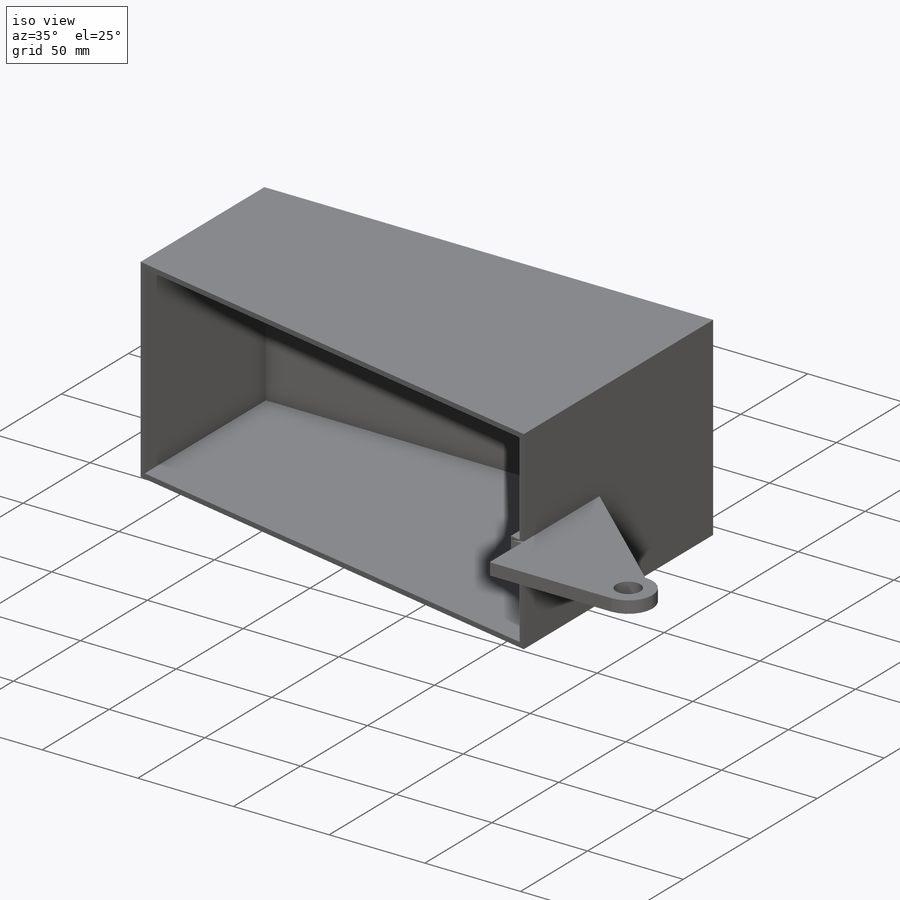
[diagram: iso view]
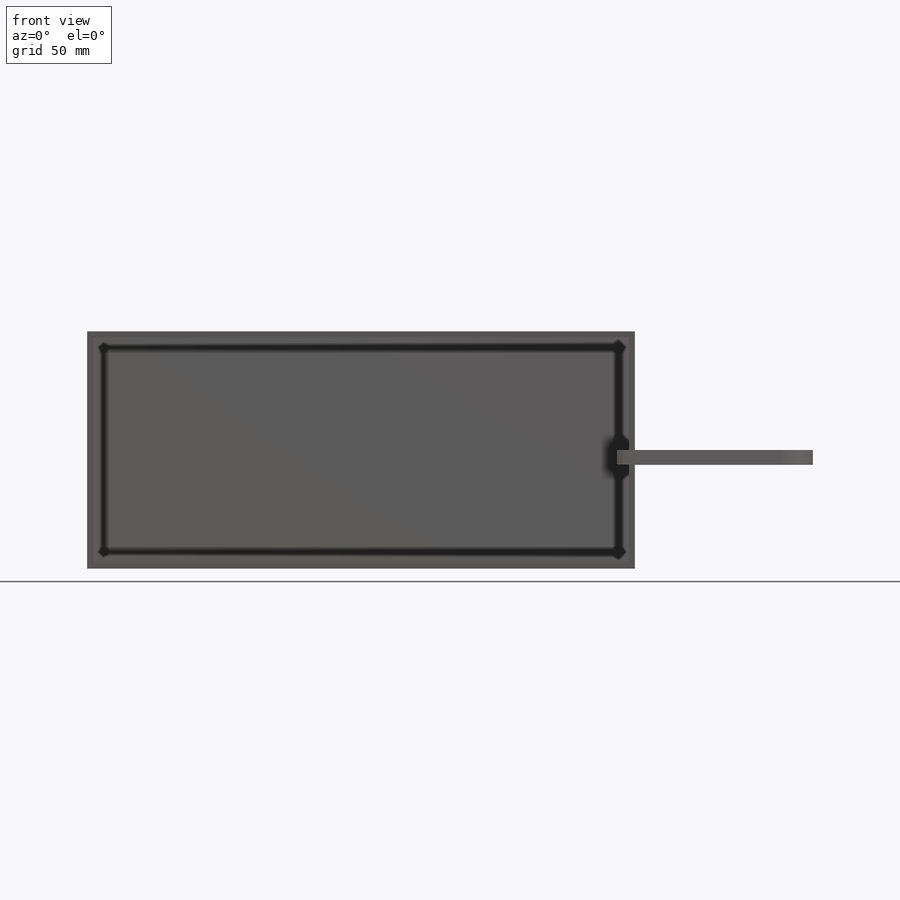
[diagram: front view]
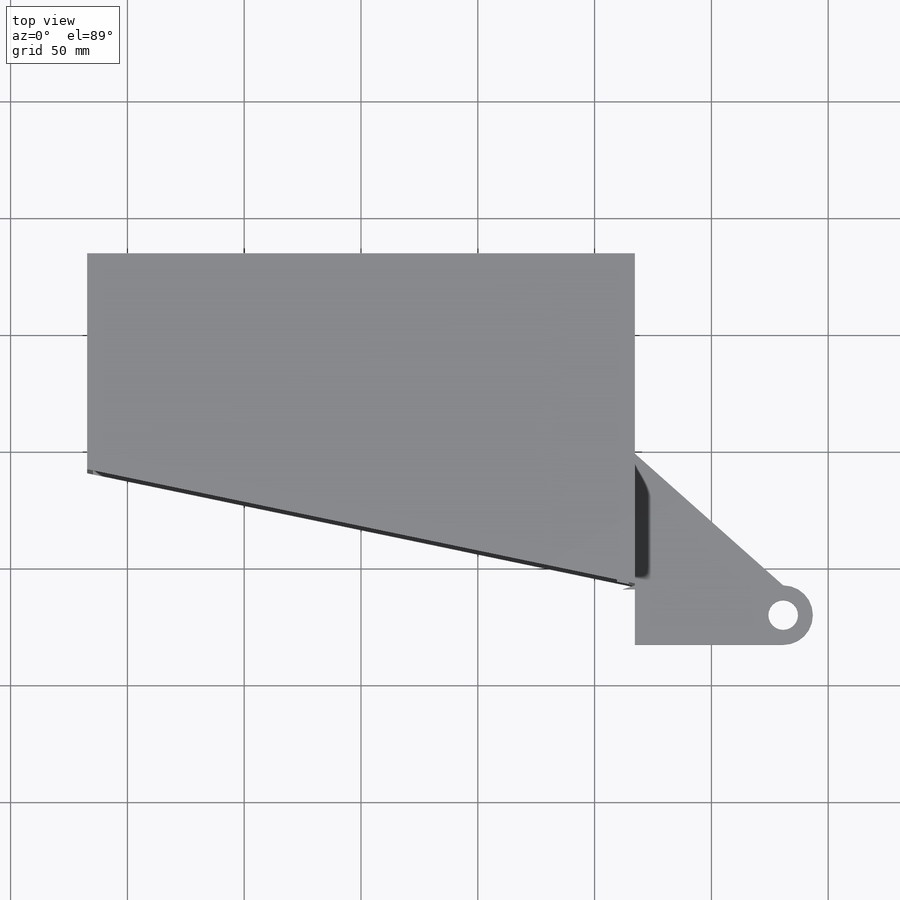
[diagram: top view]
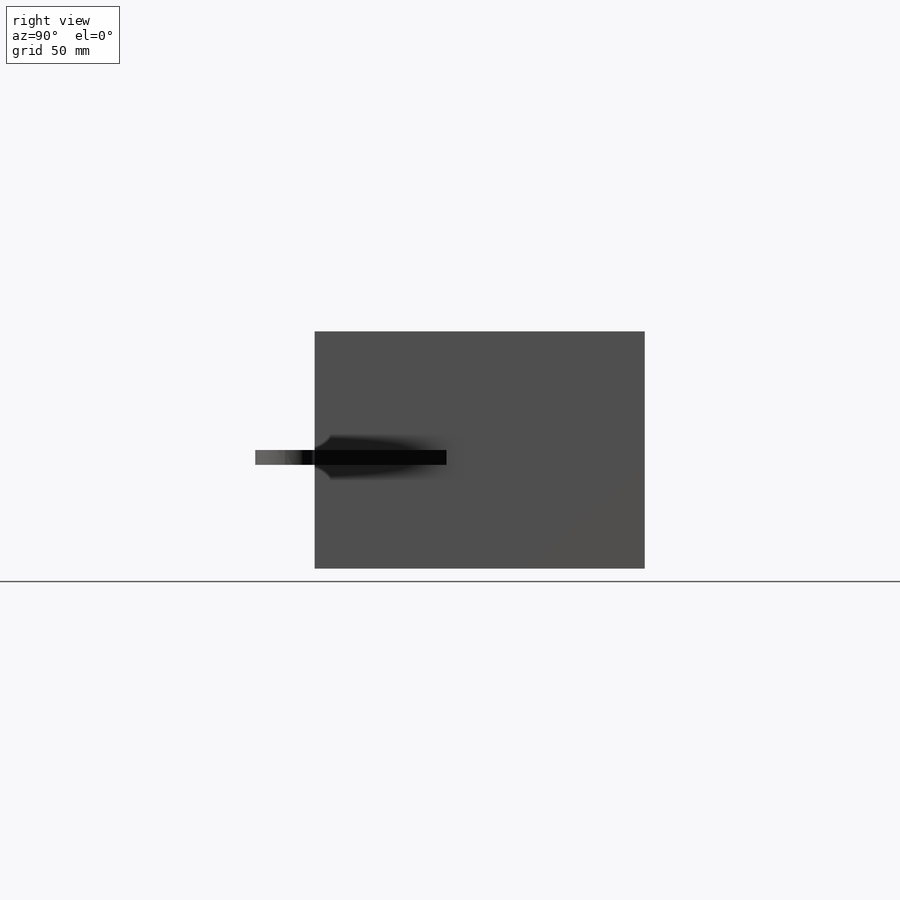
[diagram: right view]
SOLIDWORKS PART (.sldprt)
format: sldprt  version: not decoded by parser v0  size: 147,968 bytes
history: native  units: mm
features: sketch x7, extrude x3, cut_extrude x2, material x1, shell x1, fillet x1, hole x1 (+14 scaffold rows collapsed)
feature tree (30):
  scaffold x14  (default folders/planes/origin — collapsed)
  material  "Material <not specified>"
  sketch  "Sketch1"
  extrude  "Extrude1"  Depth=101.6mm
  shell  "Shell1"  Thickness=2.54mm
  sketch  "Sketch2"  dims[D1=6.35mm D2=25.4mm D3=~0.000102mm]
  extrude  "Extrude2"  Depth=76.2mm
  fillet  "Fillet1"  Radius=12.7mm
  hole  "1/2 (0.5) Diameter Hole1"  Diameter=12.7mm Depth=39.878mm
  sketch  "3DSketch1"
  sketch  "Sketch3"  dims[hole-wizard template sketch: 50 standard entries collapsed; hole parameters above]
  sketch  "Sketch4"
  cut_extrude  "Extrude3"  [1 undecoded]
  sketch  "Sketch5"
  extrude  "Extrude4"  Depth=6.35mm
  sketch  "Sketch6"
  cut_extrude  "Extrude5"  [1 undecoded]
decode coverage: 8 of 15 modeling features carry decoded parameters
note: ~ marks probable driven/reference dimensions
note: 2 parameter values undecoded
note: suppression state not decoded; provenance and decode notes live in map.json
